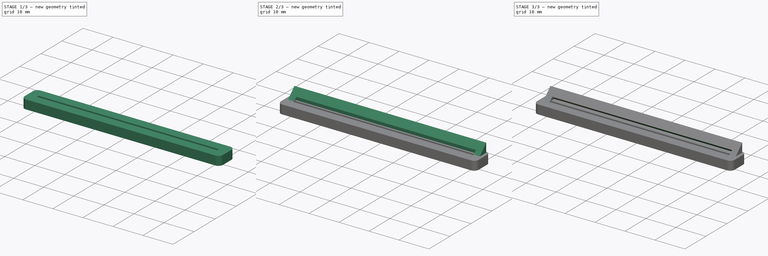
[diagram: build sequence overview — one tinted view per stage of 3, left to right]
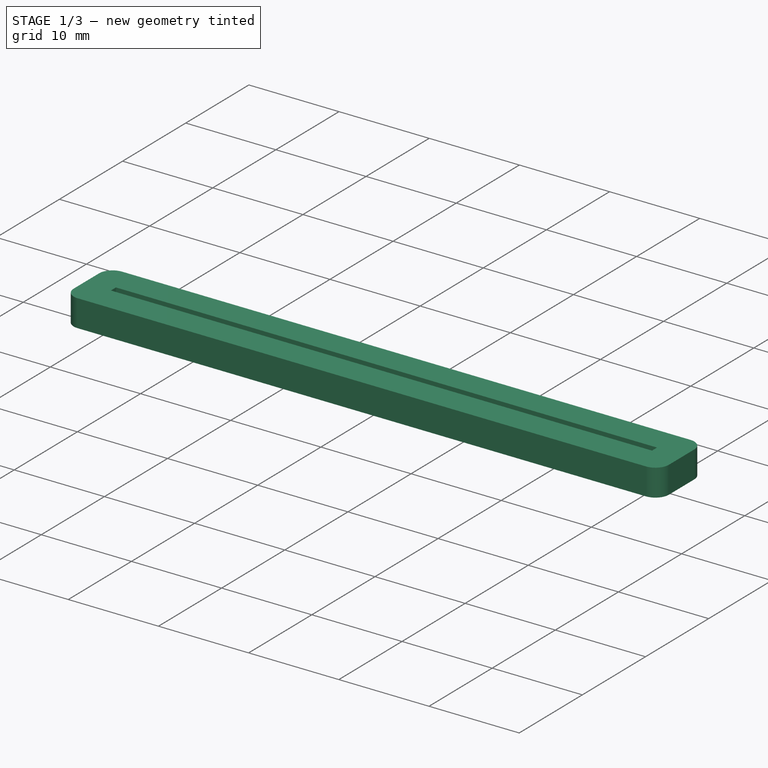
[diagram: stage 1 of 3 — iso view after this stage's code; geometry added in this stage tinted green]
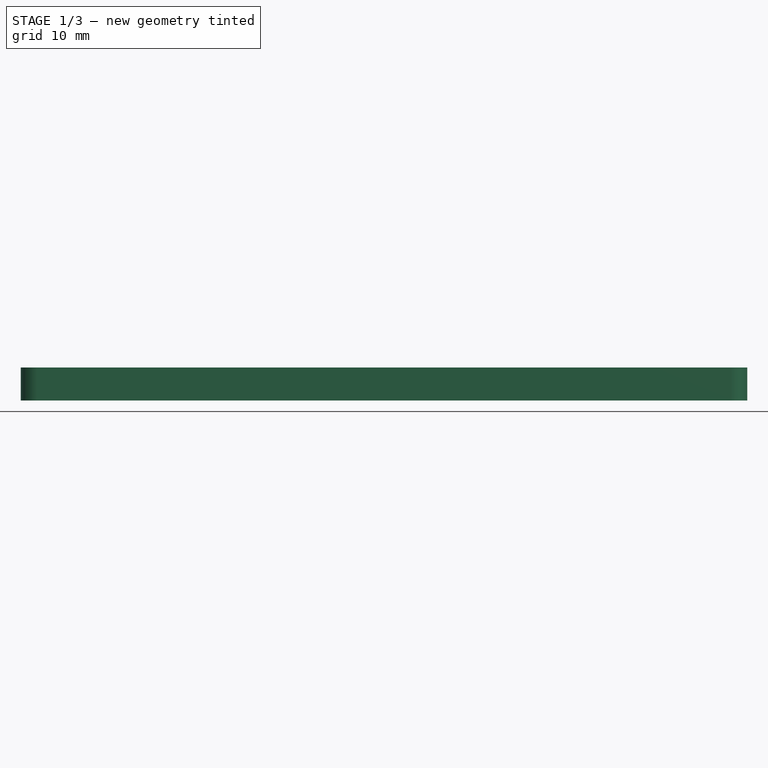
[diagram: stage 1 of 3 — front view after this stage's code; geometry added in this stage tinted green]
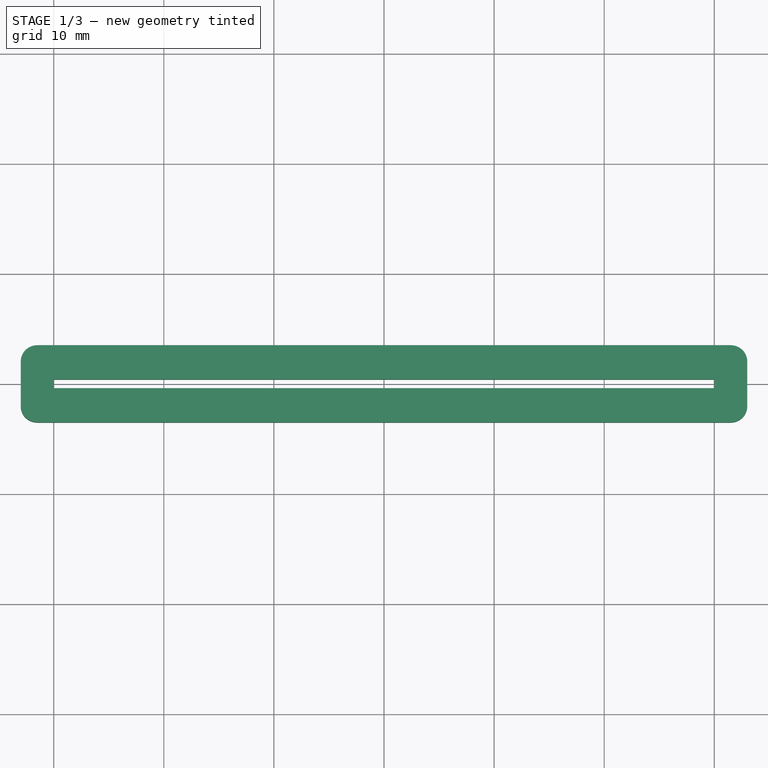
[diagram: stage 1 of 3 — top view after this stage's code; geometry added in this stage tinted green]
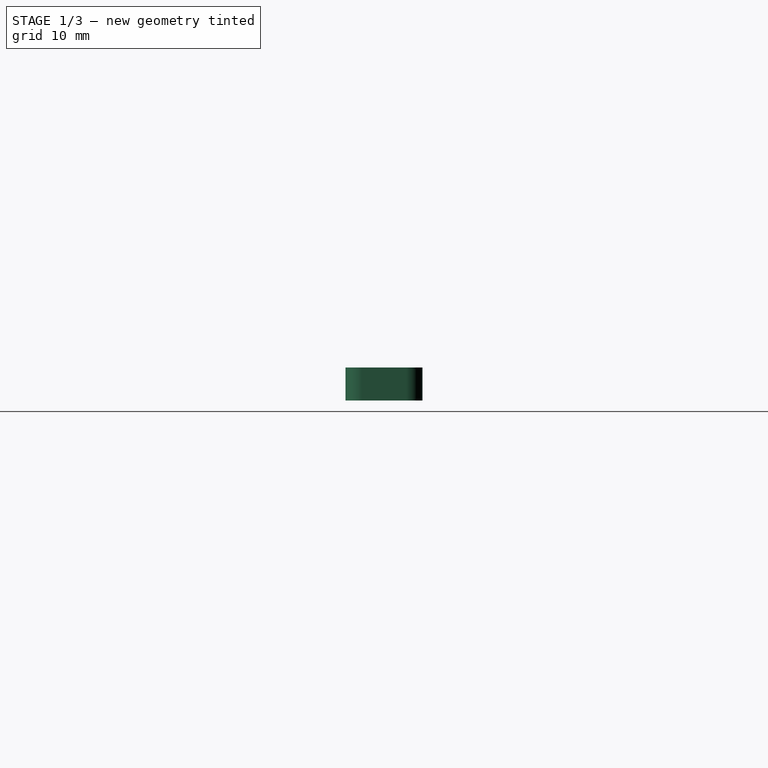
[diagram: stage 1 of 3 — right view after this stage's code; geometry added in this stage tinted green]
FCSTD DOCUMENT  (FreeCAD 0.18.4R)
Label: card_holder
License: All rights reserved
LicenseURL: http://en.wikipedia.org/wiki/All_rights_reserved
objects: Sketcher::SketchObject×5, PartDesign::Pocket×3, PartDesign::Pad×2, PartDesign::Body×2, PartDesign::Fillet×1, TechDraw::DrawSVGTemplate×1, TechDraw::DrawViewPart×1, TechDraw::DrawPage×1
note: 18 computed .brp shape members not serialized (recipe doc carries the construction recipe); baked Part::Feature solids carry a one-line shape summary decoded from their .brp

FEATURE [PartDesign::Body] Body
  Group = -> [Sketch,Pad,Sketch001,Pocket,Sketch002,Pocket001,Sketch003,Pocket002]
  Origin = -> Origin
  Tip = -> Pocket002
FEATURE [Sketcher::SketchObject] Sketch004
  MapMode = 5
  Support = -> [XY_Plane001]
  sketch-geometry (8):
    g0: LineSegment StartX=-33 StartY=3.5 StartZ=0 EndX=33 EndY=3.5 EndZ=0
    g1: LineSegment StartX=33 StartY=3.5 StartZ=0 EndX=33 EndY=-3.5 EndZ=0
    g2: LineSegment StartX=33 StartY=-3.5 StartZ=0 EndX=-33 EndY=-3.5 EndZ=0
    g3: LineSegment StartX=-33 StartY=-3.5 StartZ=0 EndX=-33 EndY=3.5 EndZ=0
    g4: LineSegment StartX=-30 StartY=0.4 StartZ=0 EndX=30 EndY=0.4 EndZ=0
    g5: LineSegment StartX=30 StartY=0.4 StartZ=0 EndX=30 EndY=-0.4 EndZ=0
    g6: LineSegment StartX=30 StartY=-0.4 StartZ=0 EndX=-30 EndY=-0.4 EndZ=0
    g7: LineSegment StartX=-30 StartY=-0.4 StartZ=0 EndX=-30 EndY=0.4 EndZ=0
  constraints (22):
    c: Coincident(g0,g1)
    c: Coincident(g1,g2)
    c: Coincident(g2,g3)
    c: Coincident(g3,g0)
    c: Horizontal(g0)
    c: Horizontal(g2)
    c: Vertical(g1)
    c: Vertical(g3)
    c: Symmetric(g0,g2,g-1)
    c: DistanceX(g0,g0) = 66
    c: DistanceY(g3,g3) = 7
    c: Coincident(g4,g5)
    c: Coincident(g5,g6)
    c: Coincident(g6,g7)
    c: Coincident(g7,g4)
    c: Horizontal(g4)
    c: Horizontal(g6)
    c: Vertical(g5)
    c: Vertical(g7)
    c: Symmetric(g4,g6,g-1)
    c: DistanceX(g4,g4) = 60
    c: DistanceY(g7,g7) = 0.8
FEATURE [PartDesign::Pad] Pad001
  Length = 3
  Length2 = 100
  Profile = -> Sketch004
  Refine = true
  Type = 0
FEATURE [PartDesign::Fillet] Fillet
  Base = -> Pad001 [Edge1,Edge8,Edge2,Edge5]
  BaseFeature = -> Pad001
  Radius = 1.5
FEATURE [PartDesign::Body] Body001
  Group = -> [Sketch004,Pad001,Fillet]
  Origin = -> Origin001
  Tip = -> Fillet
FEATURE [TechDraw::DrawSVGTemplate] Template
  Height = 210
  Orientation = 1
  Width = 297
FEATURE [TechDraw::DrawViewPart] View
  CoarseView = false
  Direction = (0,0,1)
  Focus = 100
  HardHidden = false
  IsoCount = 0
  IsoHidden = false
  IsoVisible = false
  LockPosition = false
  Perspective = false
  Rotation = 0
  ScaleType = 0
  SeamHidden = false
  SeamVisible = false
  SmoothHidden = false
  SmoothVisible = false
  Source = -> [Fillet]
  X = 148.5
  Y = 105
FEATURE [TechDraw::DrawPage] Page
  KeepUpdated = true
  ProjectionType = 0
  Template = -> Template
  Views = -> [View]
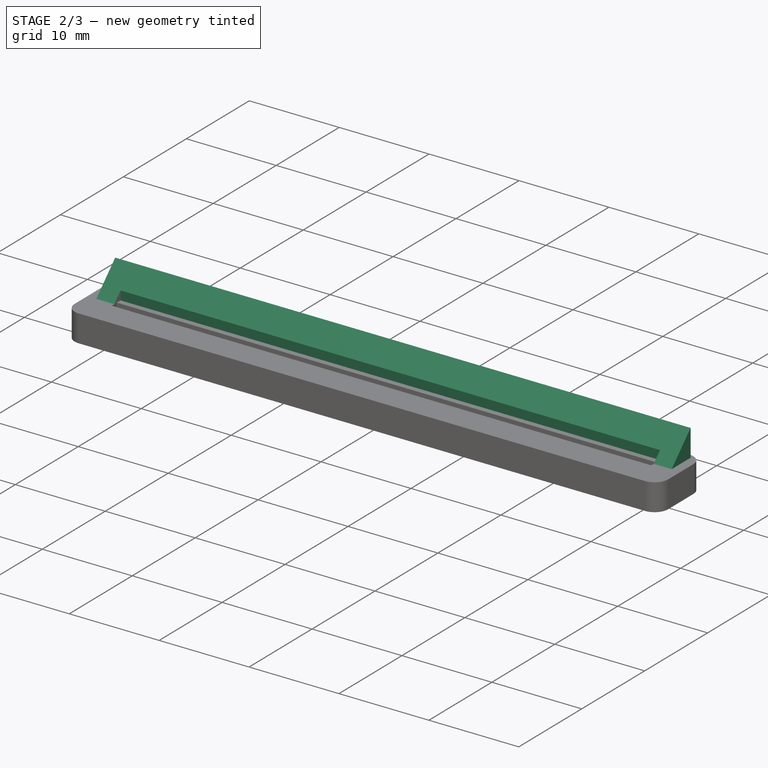
[diagram: stage 2 of 3 — iso view after this stage's code; geometry added in this stage tinted green]
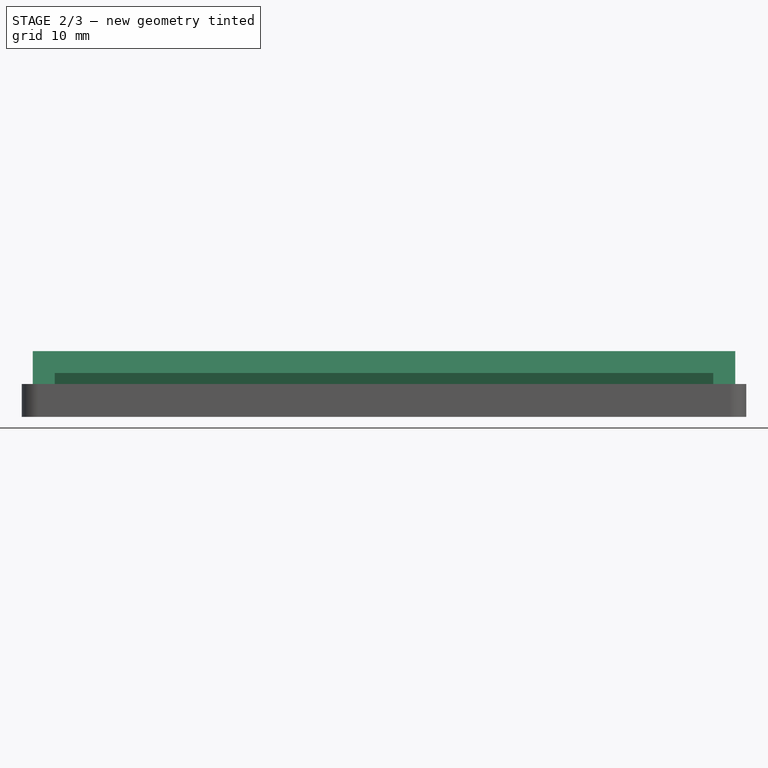
[diagram: stage 2 of 3 — front view after this stage's code; geometry added in this stage tinted green]
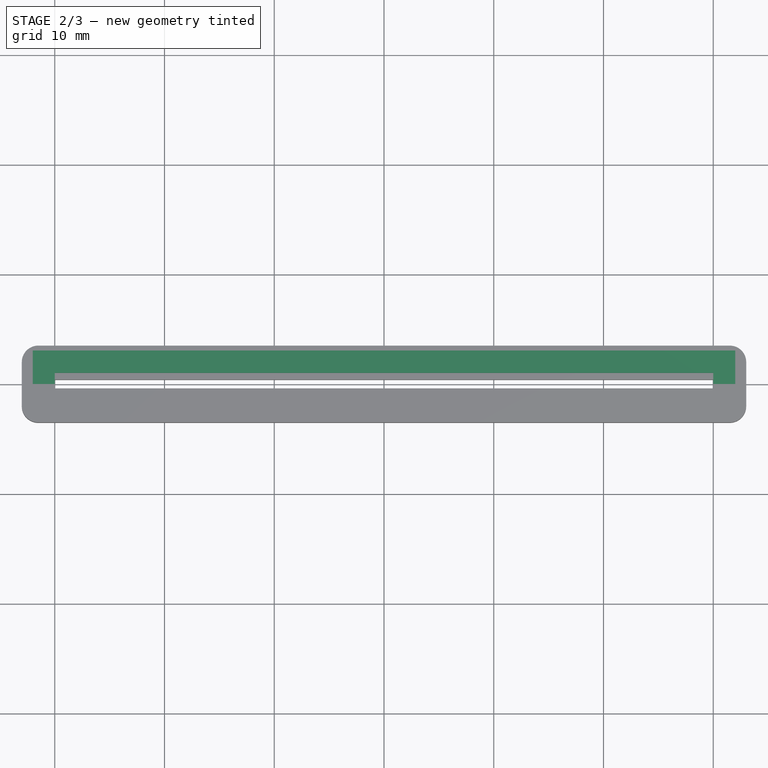
[diagram: stage 2 of 3 — top view after this stage's code; geometry added in this stage tinted green]
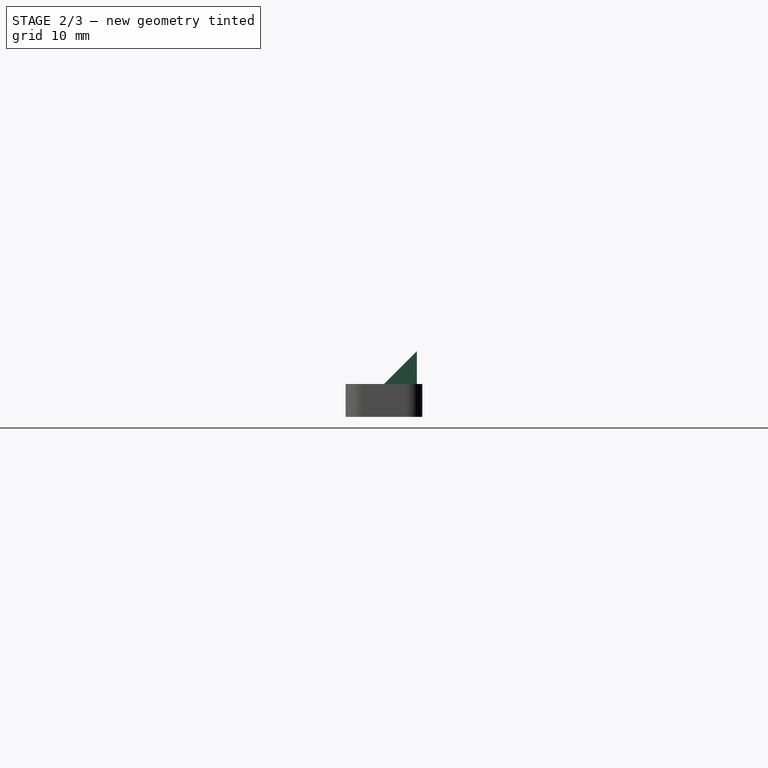
[diagram: stage 2 of 3 — right view after this stage's code; geometry added in this stage tinted green]
FEATURE [Sketcher::SketchObject] Sketch
  MapMode = 5
  Support = -> [XY_Plane]
  sketch-geometry (8):
    g0: LineSegment StartX=-32 StartY=3 StartZ=0 EndX=32 EndY=3 EndZ=0
    g1: LineSegment StartX=32 StartY=3 StartZ=0 EndX=32 EndY=-3 EndZ=0
    g2: LineSegment StartX=32 StartY=-3 StartZ=0 EndX=-32 EndY=-3 EndZ=0
    g3: LineSegment StartX=-32 StartY=-3 StartZ=0 EndX=-32 EndY=3 EndZ=0
    g4: LineSegment StartX=-30 StartY=1 StartZ=0 EndX=30 EndY=1 EndZ=0
    g5: LineSegment StartX=30 StartY=1 StartZ=0 EndX=30 EndY=-1 EndZ=0
    g6: LineSegment StartX=30 StartY=-1 StartZ=0 EndX=-30 EndY=-1 EndZ=0
    g7: LineSegment StartX=-30 StartY=-1 StartZ=0 EndX=-30 EndY=1 EndZ=0
  constraints (22):
    c: Coincident(g0,g1)
    c: Coincident(g1,g2)
    c: Coincident(g2,g3)
    c: Coincident(g3,g0)
    c: Horizontal(g0)
    c: Horizontal(g2)
    c: Vertical(g1)
    c: Vertical(g3)
    c: Symmetric(g0,g2,g-1)
    c: DistanceY(g3,g3) = 6
    c: DistanceX(g2,g2) = 64
    c: Coincident(g4,g5)
    c: Coincident(g5,g6)
    c: Coincident(g6,g7)
    c: Coincident(g7,g4)
    c: Horizontal(g4)
    c: Horizontal(g6)
    c: Vertical(g5)
    c: Vertical(g7)
    c: DistanceX(g4,g4) = 60
    c: DistanceY(g5,g5) = 2
    c: Symmetric(g5,g4,g-1)
FEATURE [PartDesign::Pad] Pad
  Length = 6
  Length2 = 100
  Profile = -> Sketch
  Refine = true
  Type = 0
FEATURE [Sketcher::SketchObject] Sketch001
  ExternalGeometry = -> [Pad]
  MapMode = 5
  Placement = pos=(32,0,0) rot=(0.57735,0.57735,0.57735;2.0944rad)
  Support = -> [Pad]
  sketch-geometry (3):
    g0: LineSegment StartX=-3 StartY=0 StartZ=0 EndX=-3 EndY=6 EndZ=0
    g1: LineSegment StartX=-3 StartY=6 StartZ=0 EndX=3 EndY=6 EndZ=0
    g2: LineSegment StartX=3 StartY=6 StartZ=0 EndX=-3 EndY=0 EndZ=0
  constraints (6):
    c: Coincident(g-3,g0)
    c: Coincident(g0,g-4)
    c: Coincident(g0,g1)
    c: Coincident(g1,g-4)
    c: Coincident(g1,g2)
    c: Coincident(g2,g0)
FEATURE [PartDesign::Pocket] Pocket
  BaseFeature = -> Pad
  Length = 5
  Length2 = 100
  Profile = -> Sketch001
  Refine = true
  Type = 1
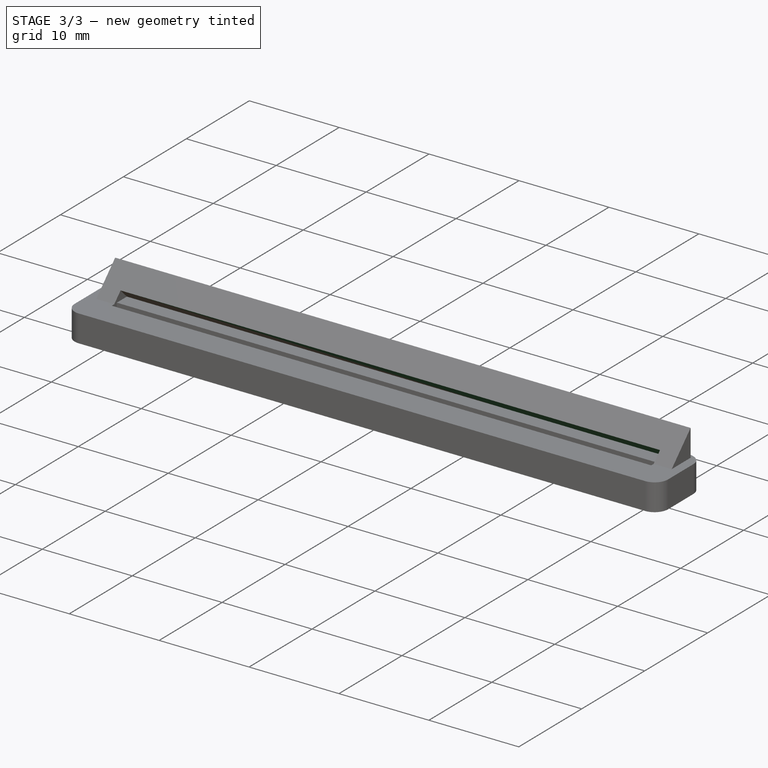
[diagram: stage 3 of 3 — iso view after this stage's code; geometry added in this stage tinted green]
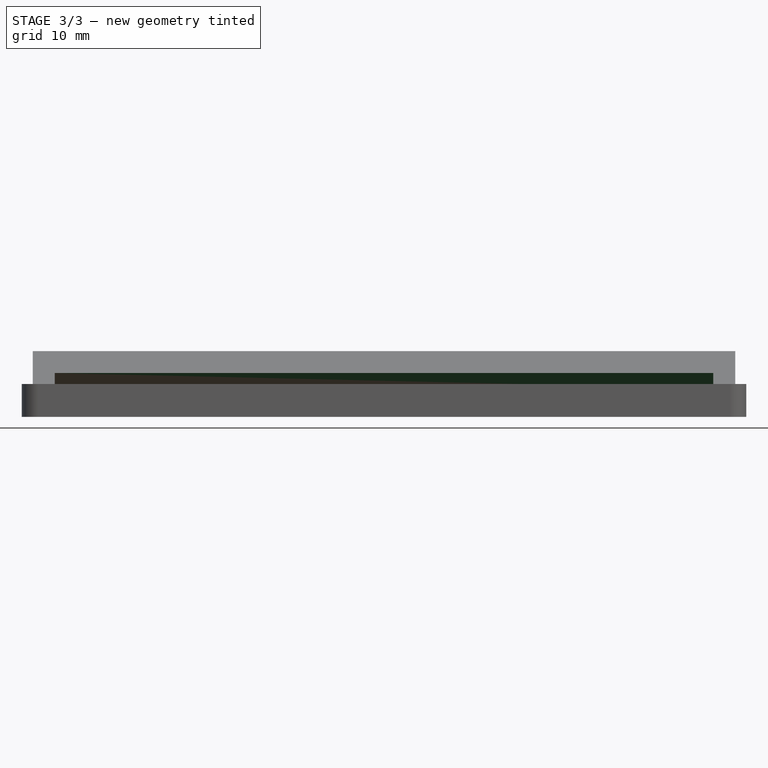
[diagram: stage 3 of 3 — front view after this stage's code; geometry added in this stage tinted green]
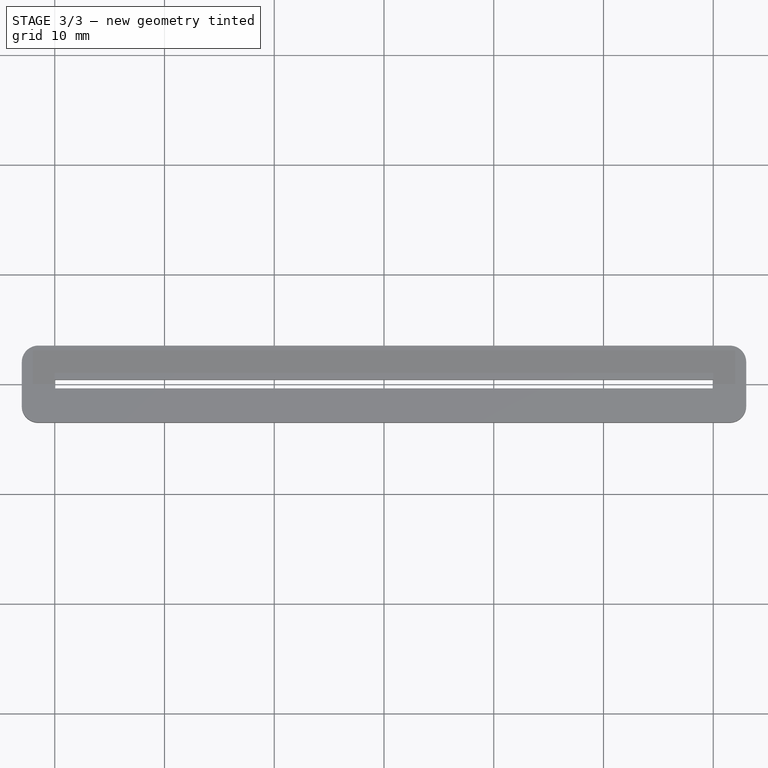
[diagram: stage 3 of 3 — top view after this stage's code; geometry added in this stage tinted green]
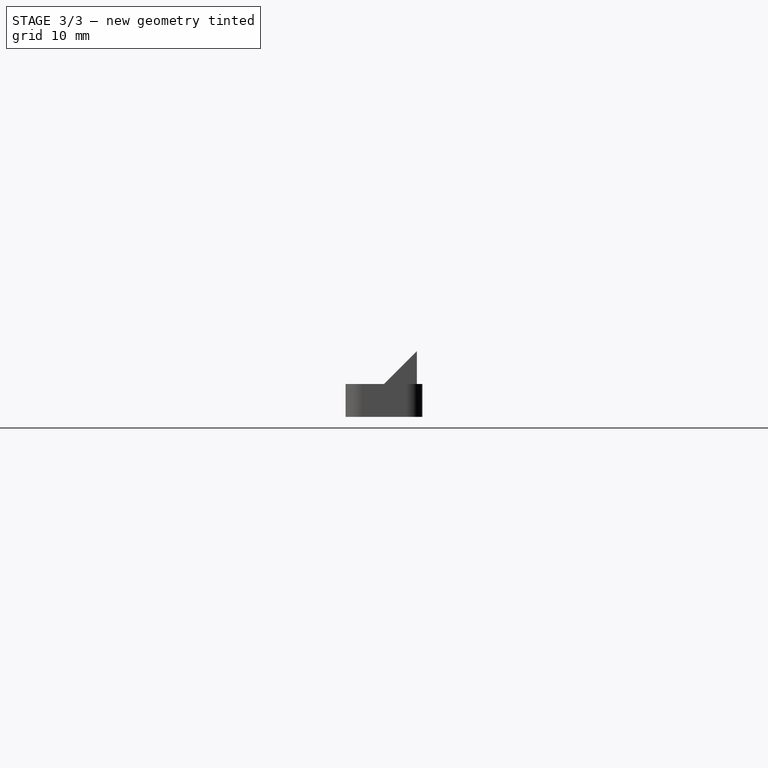
[diagram: stage 3 of 3 — right view after this stage's code; geometry added in this stage tinted green]
FEATURE [Sketcher::SketchObject] Sketch002
  ExternalGeometry = -> [Pocket]
  MapMode = 5
  Placement = pos=(0,-1.5,1.5) rot=(1,0,0;0.785398rad)
  Support = -> [Pocket]
  sketch-geometry (4):
    g0: LineSegment StartX=-30 StartY=3.53553 StartZ=0 EndX=30 EndY=3.53553 EndZ=0
    g1: LineSegment StartX=30 StartY=3.53553 StartZ=0 EndX=30 EndY=0.707107 EndZ=0
    g2: LineSegment StartX=30 StartY=0.707107 StartZ=0 EndX=-30 EndY=0.707107 EndZ=0
    g3: LineSegment StartX=-30 StartY=0.707107 StartZ=0 EndX=-30 EndY=3.53553 EndZ=0
  constraints (10):
    c: Coincident(g0,g1)
    c: Coincident(g1,g2)
    c: Coincident(g2,g3)
    c: Coincident(g3,g0)
    c: Horizontal(g0)
    c: Horizontal(g2)
    c: Vertical(g1)
    c: Vertical(g3)
    c: Coincident(g0,g-5)
    c: Coincident(g1,g-6)
FEATURE [PartDesign::Pocket] Pocket001
  BaseFeature = -> Pocket
  Length = 5
  Length2 = 100
  Profile = -> Sketch002
  Refine = true
  Type = 1
FEATURE [Sketcher::SketchObject] Sketch003
  ExternalGeometry = -> [Pocket001]
  MapMode = 5
  Placement = pos=(0,2.5,2.5) rot=(1,0,0;2.35619rad)
  Support = -> [Pocket001]
  sketch-geometry (4):
    g0: LineSegment StartX=-30 StartY=0.12132 StartZ=0 EndX=30 EndY=0.12132 EndZ=0
    g1: LineSegment StartX=30 StartY=0.12132 StartZ=0 EndX=30 EndY=-0.707107 EndZ=0
    g2: LineSegment StartX=30 StartY=-0.707107 StartZ=0 EndX=-30 EndY=-0.707107 EndZ=0
    g3: LineSegment StartX=-30 StartY=-0.707107 StartZ=0 EndX=-30 EndY=0.12132 EndZ=0
  constraints (11):
    c: Coincident(g0,g1)
    c: Coincident(g1,g2)
    c: Coincident(g2,g3)
    c: Coincident(g3,g0)
    c: Horizontal(g0)
    c: Horizontal(g2)
    c: Vertical(g1)
    c: Vertical(g3)
    c: PointOnObject(g0,g-3)
    c: Coincident(g1,g-4)
    c: Distance(g0,g-3) = 2
FEATURE [PartDesign::Pocket] Pocket002
  BaseFeature = -> Pocket001
  Length = 5
  Length2 = 100
  Profile = -> Sketch003
  Refine = true
  Type = 1
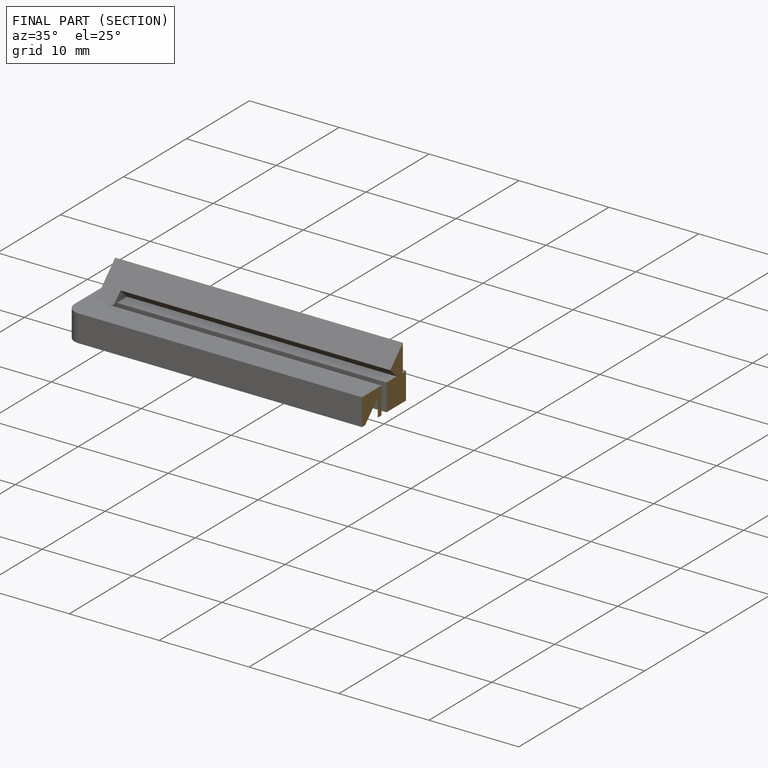
[diagram: finished part — half-section view (interior)]
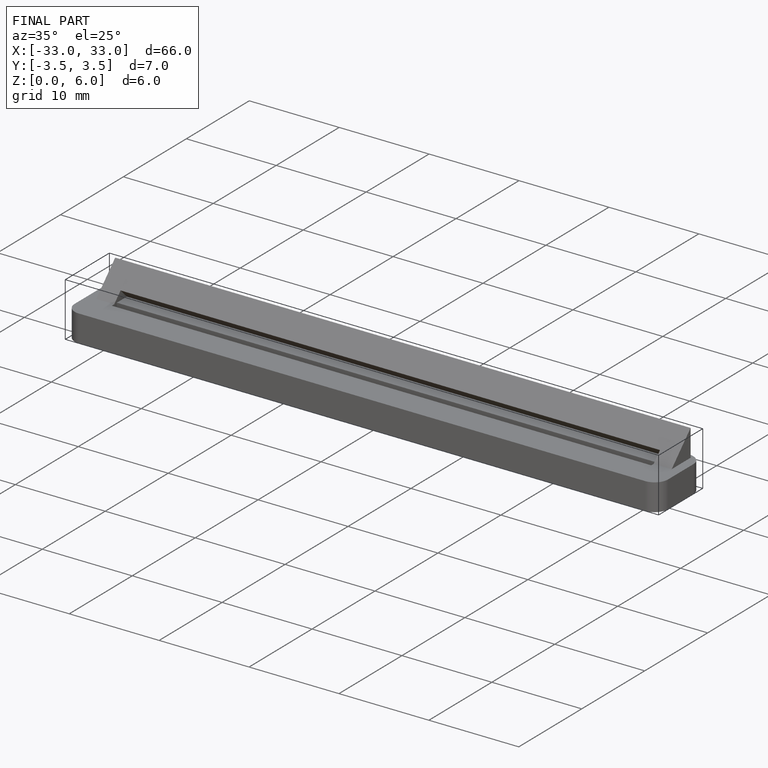
[diagram: finished part — iso view with bounding-box wireframe]
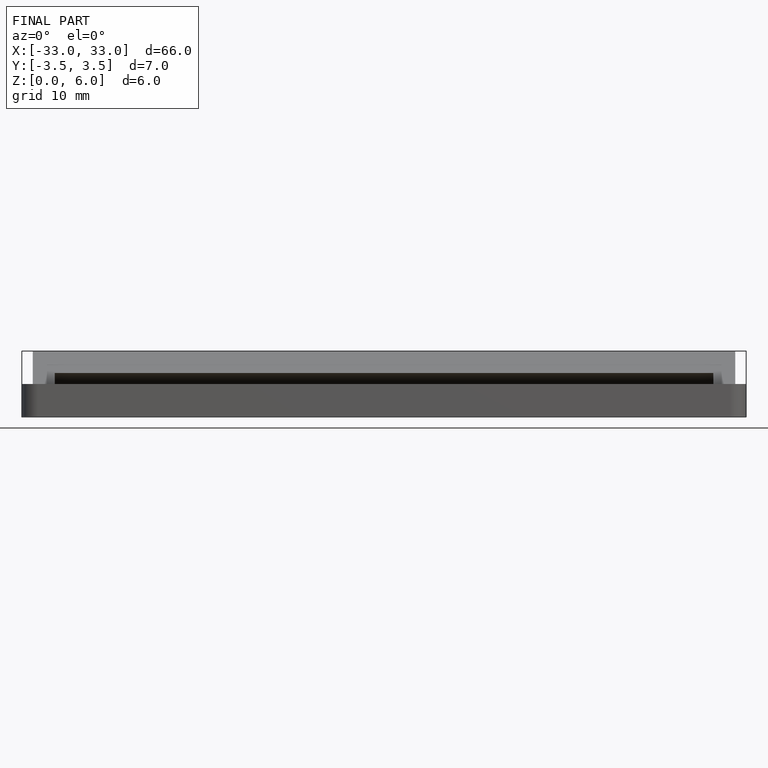
[diagram: finished part — front view with bounding-box wireframe]
